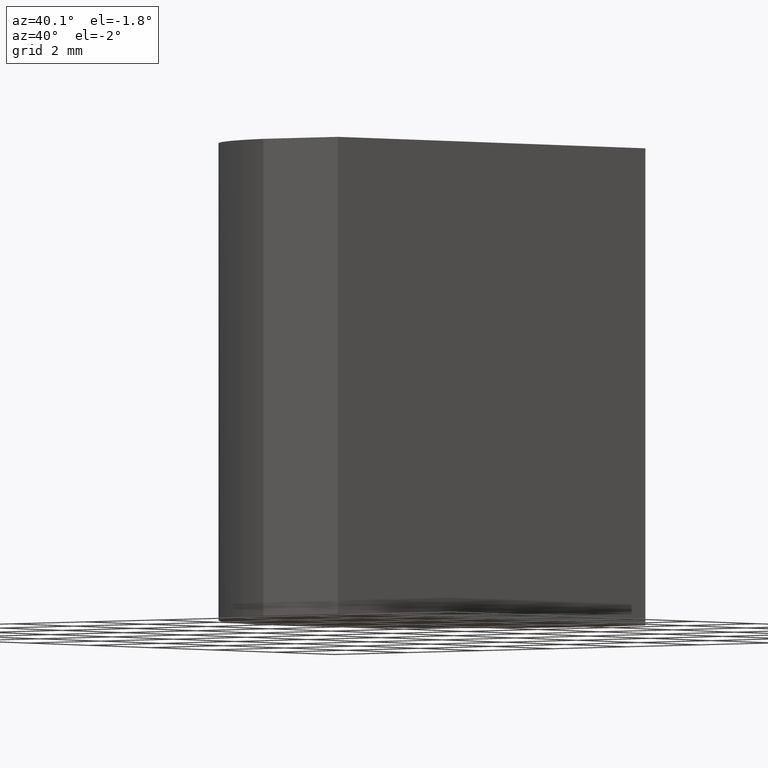
[diagram: clean part render]
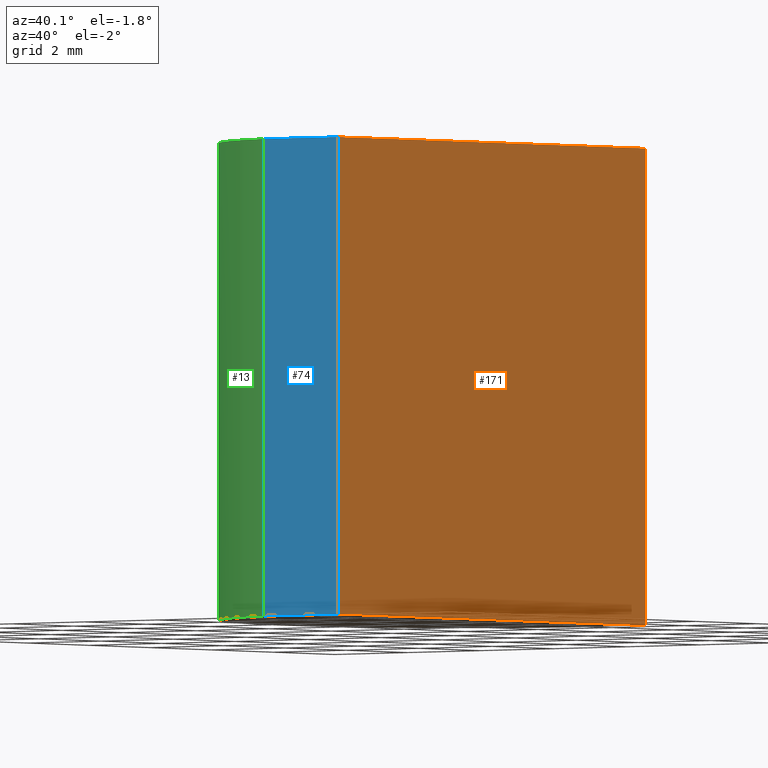
[diagram: same view with three faces highlighted in distinct colors, each labeled with its STEP entity id]
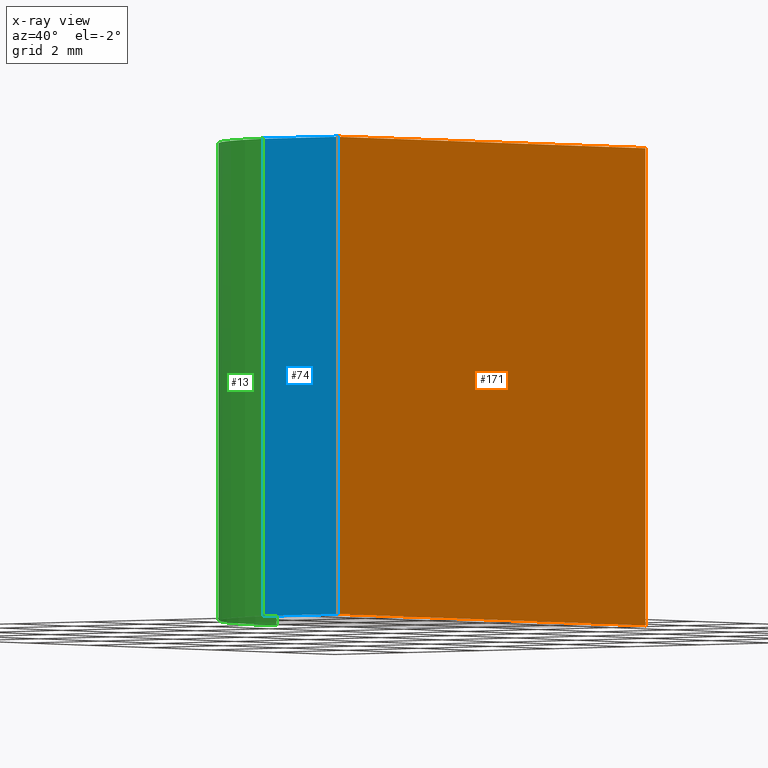
[diagram: x-ray of the same camera — body ghosted, the three highlighted faces saturated]
A machine part, auxiliary view with three faces highlighted in distinct colors.
The next image is the same camera in x-ray (body ghosted, the three faces saturated) — at least one of them is partly hidden behind the body in this view.
Their STEP definitions:

[orange] entity #171 — the highlighted planar face has unit normal (-1, 0, 0).
#3 = CARTESIAN_POINT ( 'NONE',  ( 0.7251235799513326974, 5.000000000000000000, 0.000000000000000000 ) ) ;
#4 = VERTEX_POINT ( 'NONE', #29 ) ;
#9 = VERTEX_POINT ( 'NONE', #90 ) ;
#16 = DIRECTION ( 'NONE',  ( -0.000000000000000000, 1.000000000000000000, -0.000000000000000000 ) ) ;
#18 = EDGE_CURVE ( 'NONE', #70, #4, #221, .T. ) ;
#24 = CARTESIAN_POINT ( 'NONE',  ( 0.7251235799513326974, 5.000000000000000000, 10.00000000000000000 ) ) ;
#29 = CARTESIAN_POINT ( 'NONE',  ( 0.7251235799513326974, 5.000000000000000000, 0.000000000000000000 ) ) ;
#33 = DIRECTION ( 'NONE',  ( -0.000000000000000000, 1.000000000000000000, -0.000000000000000000 ) ) ;
#57 = VECTOR ( 'NONE', #33, 1000.000000000000000 ) ;
#70 = VERTEX_POINT ( 'NONE', #24 ) ;
#75 = CARTESIAN_POINT ( 'NONE',  ( 0.7251235799513326974, 5.000000000000000000, 10.00000000000000000 ) ) ;
#76 = LINE ( 'NONE', #249, #119 ) ;
#78 = EDGE_CURVE ( 'NONE', #9, #4, #223, .T. ) ;
#90 = CARTESIAN_POINT ( 'NONE',  ( 0.7251235799513326974, -5.000000000000000000, 0.000000000000000000 ) ) ;
#91 = EDGE_LOOP ( 'NONE', ( #239, #235, #262, #131 ) ) ;
#100 = AXIS2_PLACEMENT_3D ( 'NONE', #115, #250, #179 ) ;
#114 = LINE ( 'NONE', #75, #246 ) ;
#115 = CARTESIAN_POINT ( 'NONE',  ( 0.7251235799513326974, 5.000000000000000000, 10.00000000000000000 ) ) ;
#119 = VECTOR ( 'NONE', #203, 1000.000000000000000 ) ;
#131 = ORIENTED_EDGE ( 'NONE', *, *, #220, .T. ) ;
#134 = DIRECTION ( 'NONE',  ( -0.000000000000000000, -0.000000000000000000, -1.000000000000000000 ) ) ;
#170 = VERTEX_POINT ( 'NONE', #248 ) ;
#171 = ADVANCED_FACE ( 'NONE', ( #229 ), #267, .F. ) ;
#179 = DIRECTION ( 'NONE',  ( 0.000000000000000000, 0.000000000000000000, 1.000000000000000000 ) ) ;
#187 = CARTESIAN_POINT ( 'NONE',  ( 0.7251235799513326974, 5.000000000000000000, 10.00000000000000000 ) ) ;
#199 = VECTOR ( 'NONE', #134, 1000.000000000000000 ) ;
#203 = DIRECTION ( 'NONE',  ( -0.000000000000000000, -0.000000000000000000, -1.000000000000000000 ) ) ;
#220 = EDGE_CURVE ( 'NONE', #170, #9, #76, .T. ) ;
#221 = LINE ( 'NONE', #187, #199 ) ;
#223 = LINE ( 'NONE', #3, #57 ) ;
#229 = FACE_OUTER_BOUND ( 'NONE', #91, .T. ) ;
#235 = ORIENTED_EDGE ( 'NONE', *, *, #18, .F. ) ;
#239 = ORIENTED_EDGE ( 'NONE', *, *, #78, .T. ) ;
#246 = VECTOR ( 'NONE', #16, 1000.000000000000000 ) ;
#247 = EDGE_CURVE ( 'NONE', #170, #70, #114, .T. ) ;
#248 = CARTESIAN_POINT ( 'NONE',  ( 0.7251235799513326974, -5.000000000000000000, 10.00000000000000000 ) ) ;
#249 = CARTESIAN_POINT ( 'NONE',  ( 0.7251235799513326974, -5.000000000000000000, 10.00000000000000000 ) ) ;
#250 = DIRECTION ( 'NONE',  ( -1.000000000000000000, 0.000000000000000000, 0.000000000000000000 ) ) ;
#262 = ORIENTED_EDGE ( 'NONE', *, *, #247, .F. ) ;
#267 = PLANE ( 'NONE',  #100 ) ;

[blue] entity #74 — the highlighted planar face has unit normal (0, 1, 0).
#5 = FACE_OUTER_BOUND ( 'NONE', #64, .T. ) ;
#9 = VERTEX_POINT ( 'NONE', #90 ) ;
#10 = CARTESIAN_POINT ( 'NONE',  ( -1.314876420048667560, -5.000000000000000000, 0.000000000000000000 ) ) ;
#21 = VERTEX_POINT ( 'NONE', #245 ) ;
#35 = DIRECTION ( 'NONE',  ( 1.000000000000000000, 0.000000000000000000, 0.000000000000000000 ) ) ;
#63 = VECTOR ( 'NONE', #241, 1000.000000000000000 ) ;
#64 = EDGE_LOOP ( 'NONE', ( #255, #164, #258, #196 ) ) ;
#65 = VERTEX_POINT ( 'NONE', #10 ) ;
#71 = PLANE ( 'NONE',  #272 ) ;
#72 = DIRECTION ( 'NONE',  ( 0.000000000000000000, 1.000000000000000000, 0.000000000000000000 ) ) ;
#74 = ADVANCED_FACE ( 'NONE', ( #5 ), #71, .F. ) ;
#76 = LINE ( 'NONE', #249, #119 ) ;
#90 = CARTESIAN_POINT ( 'NONE',  ( 0.7251235799513326974, -5.000000000000000000, 0.000000000000000000 ) ) ;
#119 = VECTOR ( 'NONE', #203, 1000.000000000000000 ) ;
#135 = DIRECTION ( 'NONE',  ( 0.000000000000000000, -0.000000000000000000, 1.000000000000000000 ) ) ;
#138 = DIRECTION ( 'NONE',  ( -0.000000000000000000, -0.000000000000000000, -1.000000000000000000 ) ) ;
#139 = CARTESIAN_POINT ( 'NONE',  ( -1.314876420048667560, -5.000000000000000000, 0.000000000000000000 ) ) ;
#140 = LINE ( 'NONE', #139, #264 ) ;
#143 = EDGE_CURVE ( 'NONE', #21, #170, #215, .T. ) ;
#156 = LINE ( 'NONE', #271, #188 ) ;
#164 = ORIENTED_EDGE ( 'NONE', *, *, #220, .F. ) ;
#170 = VERTEX_POINT ( 'NONE', #248 ) ;
#188 = VECTOR ( 'NONE', #138, 1000.000000000000000 ) ;
#189 = EDGE_CURVE ( 'NONE', #65, #9, #140, .T. ) ;
#191 = CARTESIAN_POINT ( 'NONE',  ( -1.314876420048667560, -5.000000000000000000, 10.00000000000000000 ) ) ;
#196 = ORIENTED_EDGE ( 'NONE', *, *, #266, .T. ) ;
#203 = DIRECTION ( 'NONE',  ( -0.000000000000000000, -0.000000000000000000, -1.000000000000000000 ) ) ;
#215 = LINE ( 'NONE', #191, #63 ) ;
#220 = EDGE_CURVE ( 'NONE', #170, #9, #76, .T. ) ;
#241 = DIRECTION ( 'NONE',  ( 1.000000000000000000, 0.000000000000000000, 0.000000000000000000 ) ) ;
#244 = CARTESIAN_POINT ( 'NONE',  ( -1.314876420048667560, -5.000000000000000000, 10.00000000000000000 ) ) ;
#245 = CARTESIAN_POINT ( 'NONE',  ( -1.314876420048667560, -5.000000000000000000, 10.00000000000000000 ) ) ;
#248 = CARTESIAN_POINT ( 'NONE',  ( 0.7251235799513326974, -5.000000000000000000, 10.00000000000000000 ) ) ;
#249 = CARTESIAN_POINT ( 'NONE',  ( 0.7251235799513326974, -5.000000000000000000, 10.00000000000000000 ) ) ;
#255 = ORIENTED_EDGE ( 'NONE', *, *, #189, .T. ) ;
#258 = ORIENTED_EDGE ( 'NONE', *, *, #143, .F. ) ;
#264 = VECTOR ( 'NONE', #35, 1000.000000000000000 ) ;
#266 = EDGE_CURVE ( 'NONE', #21, #65, #156, .T. ) ;
#271 = CARTESIAN_POINT ( 'NONE',  ( -1.314876420048667560, -5.000000000000000000, 10.00000000000000000 ) ) ;
#272 = AXIS2_PLACEMENT_3D ( 'NONE', #244, #72, #135 ) ;

[green] entity #13 — the highlighted cylindrical surface (partial cylindrical patch) has radius 5.17 mm, axis along (-0, -0, -1).
#2 = AXIS2_PLACEMENT_3D ( 'NONE', #225, #198, #118 ) ;
#10 = CARTESIAN_POINT ( 'NONE',  ( -1.314876420048667560, -5.000000000000000000, 0.000000000000000000 ) ) ;
#12 = FACE_OUTER_BOUND ( 'NONE', #167, .T. ) ;
#13 = ADVANCED_FACE ( 'NONE', ( #12 ), #87, .T. ) ;
#21 = VERTEX_POINT ( 'NONE', #245 ) ;
#37 = DIRECTION ( 'NONE',  ( 1.000000000000000000, 0.000000000000000000, 0.000000000000000000 ) ) ;
#54 = CARTESIAN_POINT ( 'NONE',  ( -5.169999999999999929, 0.000000000000000000, 10.00000000000000000 ) ) ;
#60 = VERTEX_POINT ( 'NONE', #195 ) ;
#65 = VERTEX_POINT ( 'NONE', #10 ) ;
#67 = DIRECTION ( 'NONE',  ( -0.000000000000000000, -0.000000000000000000, -1.000000000000000000 ) ) ;
#77 = LINE ( 'NONE', #269, #231 ) ;
#87 = CYLINDRICAL_SURFACE ( 'NONE', #128, 5.169999999999999929 ) ;
#94 = DIRECTION ( 'NONE',  ( 0.000000000000000000, 0.000000000000000000, 1.000000000000000000 ) ) ;
#98 = AXIS2_PLACEMENT_3D ( 'NONE', #230, #94, #37 ) ;
#103 = DIRECTION ( 'NONE',  ( -1.000000000000000000, 0.000000000000000000, 0.000000000000000000 ) ) ;
#108 = ORIENTED_EDGE ( 'NONE', *, *, #200, .F. ) ;
#118 = DIRECTION ( 'NONE',  ( 1.000000000000000000, 0.000000000000000000, 0.000000000000000000 ) ) ;
#128 = AXIS2_PLACEMENT_3D ( 'NONE', #132, #67, #103 ) ;
#132 = CARTESIAN_POINT ( 'NONE',  ( 0.000000000000000000, 0.000000000000000000, 10.00000000000000000 ) ) ;
#138 = DIRECTION ( 'NONE',  ( -0.000000000000000000, -0.000000000000000000, -1.000000000000000000 ) ) ;
#146 = ORIENTED_EDGE ( 'NONE', *, *, #162, .T. ) ;
#156 = LINE ( 'NONE', #271, #188 ) ;
#158 = DIRECTION ( 'NONE',  ( -0.000000000000000000, -0.000000000000000000, -1.000000000000000000 ) ) ;
#161 = EDGE_CURVE ( 'NONE', #60, #65, #228, .T. ) ;
#162 = EDGE_CURVE ( 'NONE', #186, #60, #77, .T. ) ;
#167 = EDGE_LOOP ( 'NONE', ( #108, #146, #261, #257 ) ) ;
#186 = VERTEX_POINT ( 'NONE', #54 ) ;
#188 = VECTOR ( 'NONE', #138, 1000.000000000000000 ) ;
#195 = CARTESIAN_POINT ( 'NONE',  ( -5.169999999999999929, 0.000000000000000000, 0.000000000000000000 ) ) ;
#198 = DIRECTION ( 'NONE',  ( 0.000000000000000000, 0.000000000000000000, 1.000000000000000000 ) ) ;
#200 = EDGE_CURVE ( 'NONE', #186, #21, #205, .T. ) ;
#205 = CIRCLE ( 'NONE', #2, 5.169999999999999929 ) ;
#225 = CARTESIAN_POINT ( 'NONE',  ( 0.000000000000000000, 0.000000000000000000, 10.00000000000000000 ) ) ;
#228 = CIRCLE ( 'NONE', #98, 5.169999999999999929 ) ;
#230 = CARTESIAN_POINT ( 'NONE',  ( 0.000000000000000000, 0.000000000000000000, 0.000000000000000000 ) ) ;
#231 = VECTOR ( 'NONE', #158, 1000.000000000000000 ) ;
#245 = CARTESIAN_POINT ( 'NONE',  ( -1.314876420048667560, -5.000000000000000000, 10.00000000000000000 ) ) ;
#257 = ORIENTED_EDGE ( 'NONE', *, *, #266, .F. ) ;
#261 = ORIENTED_EDGE ( 'NONE', *, *, #161, .T. ) ;
#266 = EDGE_CURVE ( 'NONE', #21, #65, #156, .T. ) ;
#269 = CARTESIAN_POINT ( 'NONE',  ( -5.169999999999999929, 0.000000000000000000, 10.00000000000000000 ) ) ;
#271 = CARTESIAN_POINT ( 'NONE',  ( -1.314876420048667560, -5.000000000000000000, 10.00000000000000000 ) ) ;